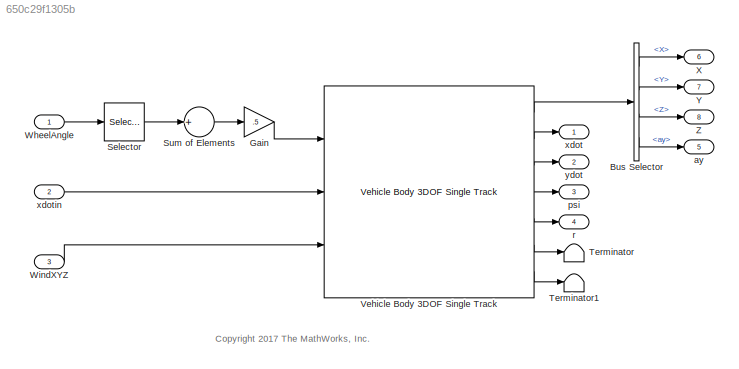
MODEL slx_650c29f1305b
KIND model
CONFIG AbsTol = auto
CONFIG EnableMultiTasking = off
CONFIG FixedStep = .001
CONFIG MaxStep = auto
CONFIG MinStep = auto
CONFIG RelTol = 3e-3
CONFIG SampleTimeConstraint = Unconstrained
CONFIG Solver = ode4
CONFIG SolverName = ode4
CONFIG StartTime = 0.0
CONFIG StopTime = 60
WORKSPACE source: MAT-file member
WORKSPACE A_mu = 10
WORKSPACE Cps = 2
BLOCK [BusSelector] Bus Selector
  OutputAsBus = off
  OutputSignals = InertFrm.Cg.Disp.X,InertFrm.Cg.Disp.Y,InertFrm.Cg.Disp.Z,BdyFrm.Cg.Acc.ay
  Ports = [1, 4]
BLOCK [Gain] Gain
  Gain = .5
  OutDataTypeStr = Inherit: Inherit via internal rule
  ParamDataTypeStr = Inherit: Inherit via internal rule
  SaturateOnIntegerOverflow = off
BLOCK [Selector] Selector
  IndexOptions = Index vector (dialog)
  Indices = [1 2]
  InputPortWidth = 4
  OutputSizes = 1
  Ports = [1, 1]
BLOCK [Sum] Sum of Elements
  InputSameDT = off
  Inputs = +
  OutDataTypeStr = Inherit: Inherit via internal rule
  Ports = [1, 1]
  SaturateOnIntegerOverflow = off
BLOCK [Terminator] Terminator
BLOCK [Terminator] Terminator1
BLOCK [Reference] Vehicle Body 3DOF Single Track  REF=autolibshared/Vehicle Body 3DOF Single Track
  Ports = [3, 7]
  SourceBlock = autolibshared/Vehicle Body 3DOF Single Track
  SourceProductBaseCode = PW
  SourceProductName = Powertrain Blockset
  SourceType = Vehicle Body 3DOF Lateral
BLOCK [Inport] WheelAngle
  IconDisplay = Port number
  PortDimensions = 4
BLOCK [Inport] WindXYZ
  IconDisplay = Port number
  Port = 3
  PortDimensions = 3
BLOCK [Outport] X
  IconDisplay = Port number
  Port = 6
BLOCK [Outport] Y
  IconDisplay = Port number
  Port = 7
BLOCK [Outport] Z
  IconDisplay = Port number
  Port = 8
BLOCK [Outport] ay
  IconDisplay = Port number
  Port = 5
BLOCK [Outport] psi
  IconDisplay = Port number
  Port = 3
BLOCK [Outport] r
  IconDisplay = Port number
  Port = 4
BLOCK [Outport] xdot
  IconDisplay = Port number
BLOCK [Inport] xdotin
  IconDisplay = Port number
  Port = 2
  PortDimensions = 1
BLOCK [Outport] ydot
  IconDisplay = Port number
  Port = 2
ANNOTATION (root): <copyright redacted>
LINE Bus Selector:1 -> X:1
LINE Bus Selector:2 -> Y:1
LINE Bus Selector:3 -> Z:1
LINE Bus Selector:4 -> ay:1
LINE Gain:1 -> Vehicle Body 3DOF Single Track:1
LINE Selector:1 -> Sum of Elements:1
LINE Sum of Elements:1 -> Gain:1
LINE Vehicle Body 3DOF Single Track:1 -> Bus Selector:1
LINE Vehicle Body 3DOF Single Track:2 -> xdot:1
LINE Vehicle Body 3DOF Single Track:3 -> ydot:1
LINE Vehicle Body 3DOF Single Track:4 -> psi:1
LINE Vehicle Body 3DOF Single Track:5 -> r:1
LINE Vehicle Body 3DOF Single Track:6 -> Terminator:1
LINE Vehicle Body 3DOF Single Track:7 -> Terminator1:1
LINE WheelAngle:1 -> Selector:1
LINE WindXYZ:1 -> Vehicle Body 3DOF Single Track:3
LINE xdotin:1 -> Vehicle Body 3DOF Single Track:2
